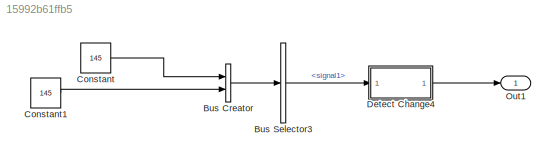
MODEL slx_15992b61ffb5
KIND model
CONFIG AbsTol = auto
CONFIG EnableMultiTasking = on
CONFIG FixedStep = 0.200000
CONFIG MaxStep = auto
CONFIG MinStep = auto
CONFIG RelTol = 1e-3
CONFIG SampleTimeConstraint = Unconstrained
CONFIG Solver = FixedStepDiscrete
CONFIG SolverName = FixedStepDiscrete
CONFIG StartTime = 0.0
CONFIG StopTime = 10.0
BLOCK [BusCreator] Bus Creator
  DisplayOption = bar
  InheritFromInputs = on
  Inputs = 2
  Ports = [2, 1]
BLOCK [BusSelector] Bus Selector3
  OutputAsBus = off
  OutputSignals = signal1
  Ports = [1, 1]
BLOCK [Constant] Constant
  OutDataTypeStr = uint16
  Value = 145
BLOCK [Constant] Constant1
  Value = 145
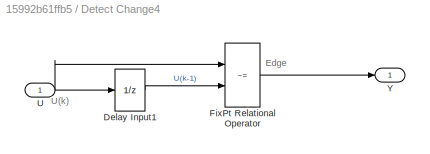
BLOCK [SubSystem] Detect Change4
  AncestorBlock = simulink/Logic and Bit\nOperations/Detect\nChange
  MinAlgLoopOccurrences = on
  Ports = [1, 1]
  RequestExecContextInheritance = off
  TreatAsAtomicUnit = on
  Variant = off
BLOCK [UnitDelay] Detect Change4/Delay Input1
  Description = Store in Global RAM
  DisableCoverage = on
  InitialCondition = vinit
  SampleTime = -1
BLOCK [RelationalOperator] Detect Change4/FixPt Relational Operator
  InputSameDT = off
  Operator = ~=
  OutDataTypeStr = boolean
  Ports = [2, 1]
  ZeroCross = off
BLOCK [Inport] Detect Change4/U
  IconDisplay = Port number
  OutDataTypeStr = uint16
  PortDimensions = 1
BLOCK [Outport] Detect Change4/Y
  IconDisplay = Port number
  InitialOutput = 0
BLOCK [Outport] Out1
  IconDisplay = Port number
ANNOTATION Detect Change4: Edge
ANNOTATION Detect Change4: U(k)
LINE Bus Creator:1 -> Bus Selector3:1
LINE Bus Selector3:1 -> Detect Change4:1
LINE Constant1:1 -> Bus Creator:2
LINE Constant:1 -> Bus Creator:1
LINE Detect Change4:1 -> Out1:1
